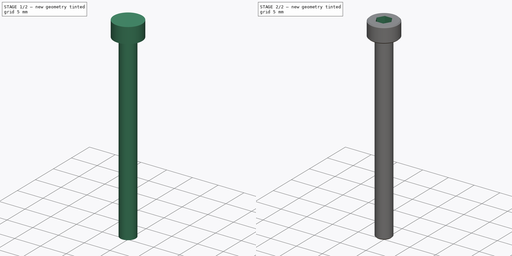
[diagram: build sequence overview — one tinted view per stage of 2, left to right]
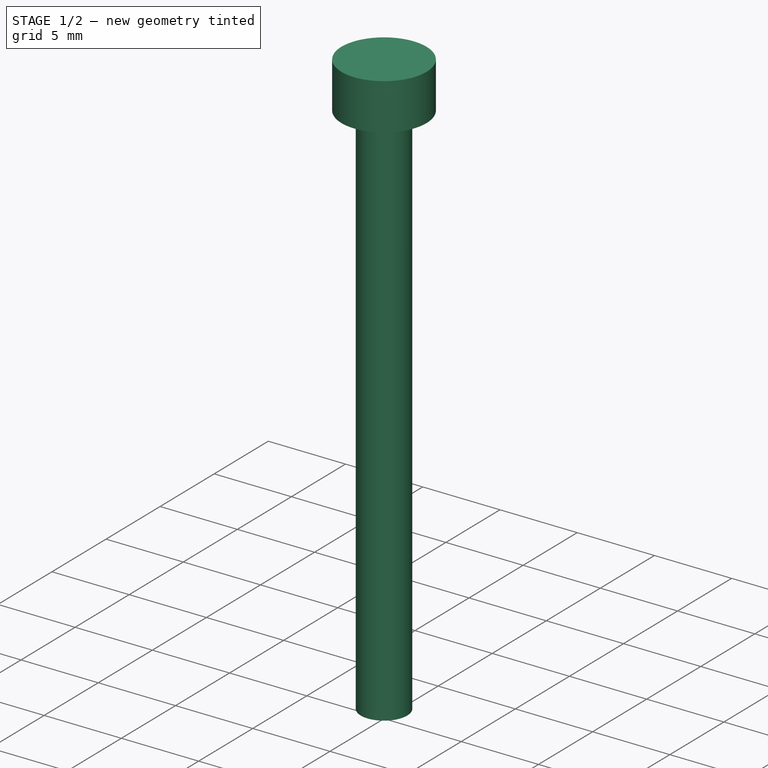
[diagram: stage 1 of 2 — iso view after this stage's code; geometry added in this stage tinted green]
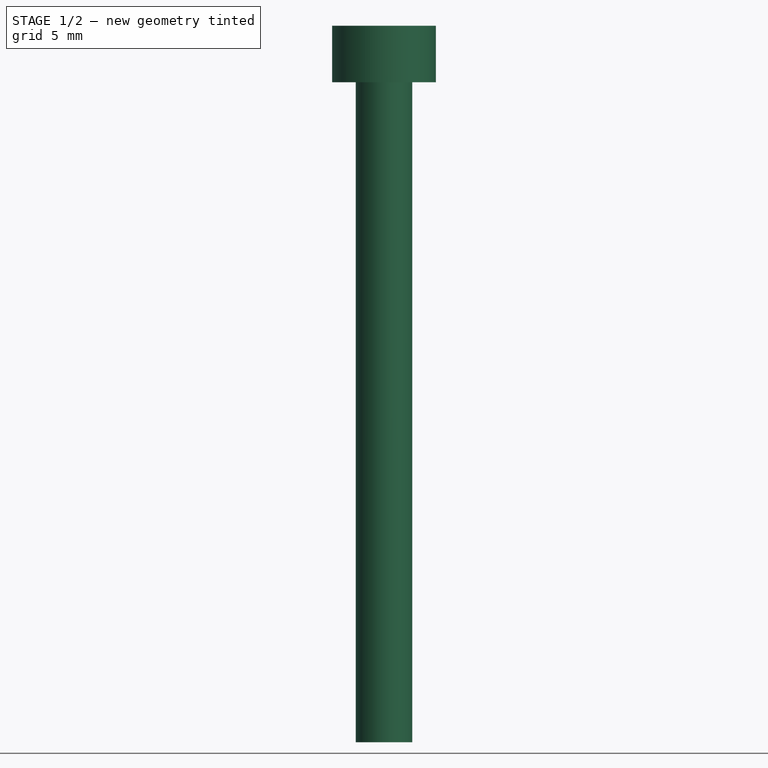
[diagram: stage 1 of 2 — front view after this stage's code; geometry added in this stage tinted green]
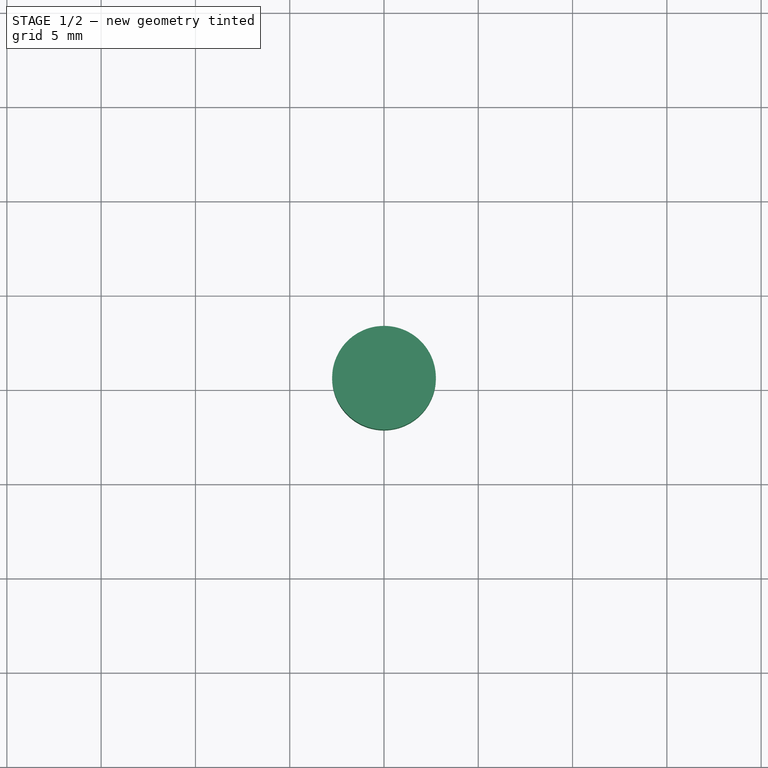
[diagram: stage 1 of 2 — top view after this stage's code; geometry added in this stage tinted green]
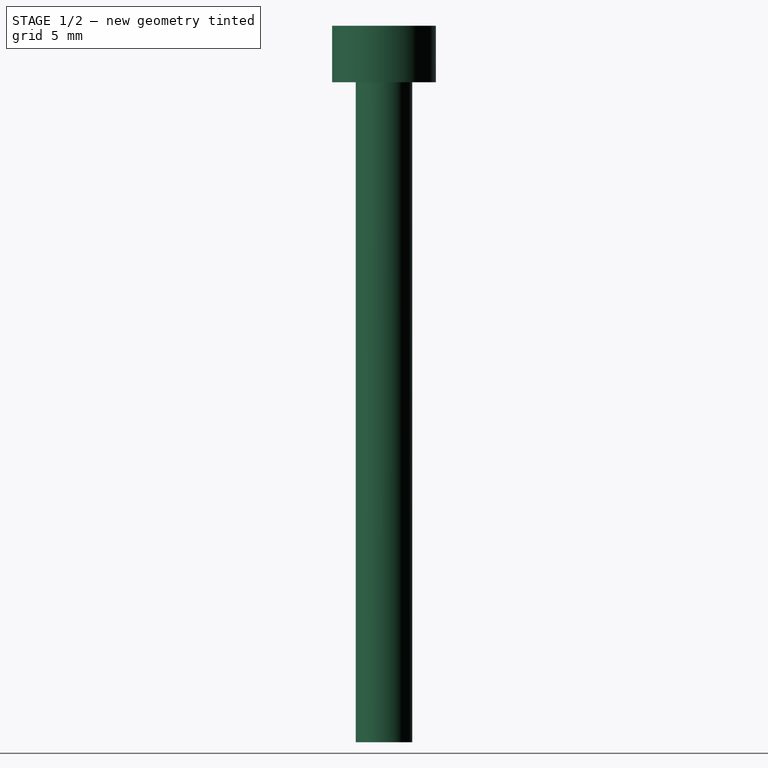
[diagram: stage 1 of 2 — right view after this stage's code; geometry added in this stage tinted green]
FCSTD DOCUMENT  (FreeCAD 0.19R24267 +148 (Git))
Label: visTHCM3x35
License: All rights reserved
LicenseURL: http://en.wikipedia.org/wiki/All_rights_reserved
objects: Sketcher::SketchObject×3, PartDesign::Pad×2, PartDesign::Plane×1, PartDesign::Pocket×1, PartDesign::Chamfer×1, PartDesign::Body×1
note: 13 computed .brp shape members not serialized (recipe doc carries the construction recipe); baked Part::Feature solids carry a one-line shape summary decoded from their .brp

FEATURE [Sketcher::SketchObject] Sketch
  FullyConstrained = false
  MapMode = 5
  Support = -> [XY_Plane]
  sketch-geometry (1):
    g0: Circle CenterX=0 CenterY=0 CenterZ=0 NormalX=0 NormalY=0 NormalZ=1 AngleXU=0 Radius=2.75
  constraints (2):
    c: Coincident(g0,g-1)
    c: Diameter(g0) = 5.5
FEATURE [PartDesign::Pad] Pad  label="tete"
  AllowMultiFace = false
  Direction = (1,1,1)
  Length = 3
  Length2 = 100
  Profile = -> Sketch
  Type = 0
FEATURE [Sketcher::SketchObject] Sketch001
  FullyConstrained = false
  MapMode = 5
  Placement = pos=(0,0,0) rot=(1,0,0;3.14159rad)
  Support = -> [Pad]
  sketch-geometry (1):
    g0: Circle CenterX=0 CenterY=0 CenterZ=0 NormalX=0 NormalY=0 NormalZ=1 AngleXU=0 Radius=1.5
  constraints (2):
    c: Coincident(g0,g-1)
    c: Diameter(g0) = 3
FEATURE [PartDesign::Pad] Pad001  label="corps"
  AllowMultiFace = false
  BaseFeature = -> Pad
  Direction = (1,1,1)
  Length = 35
  Length2 = 100
  Profile = -> Sketch001
  Type = 0
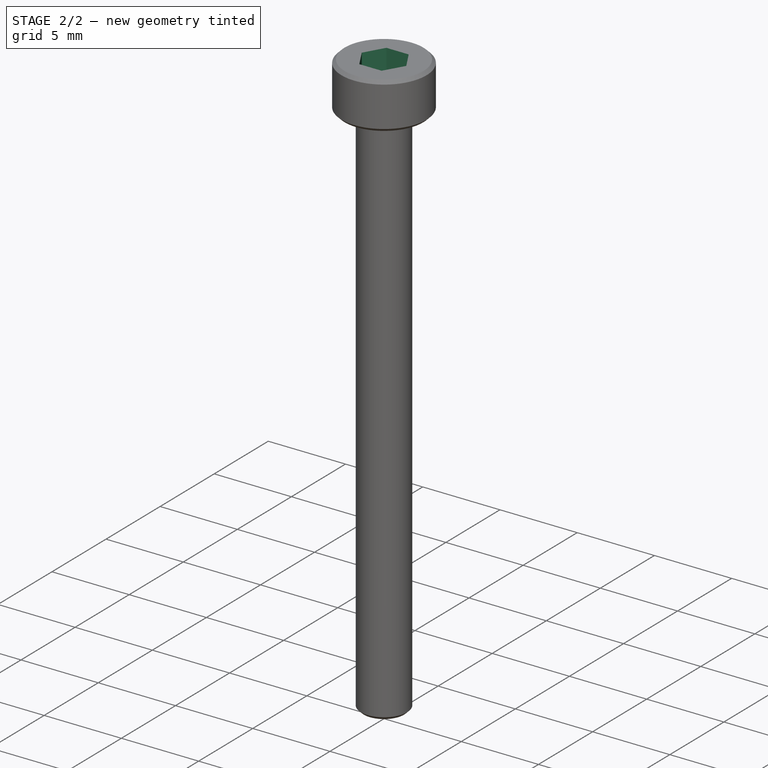
[diagram: stage 2 of 2 — iso view after this stage's code; geometry added in this stage tinted green]
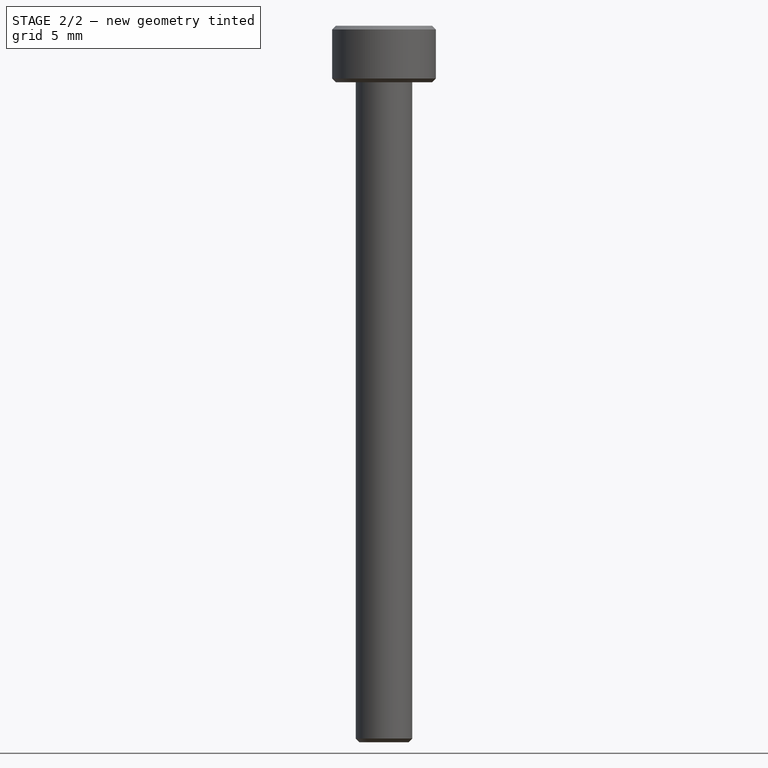
[diagram: stage 2 of 2 — front view after this stage's code; geometry added in this stage tinted green]
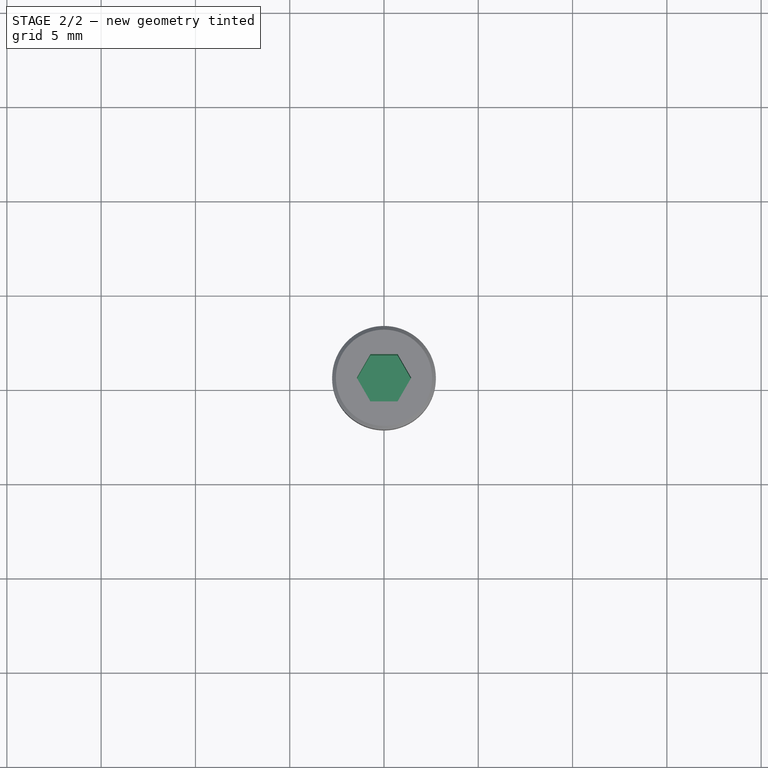
[diagram: stage 2 of 2 — top view after this stage's code; geometry added in this stage tinted green]
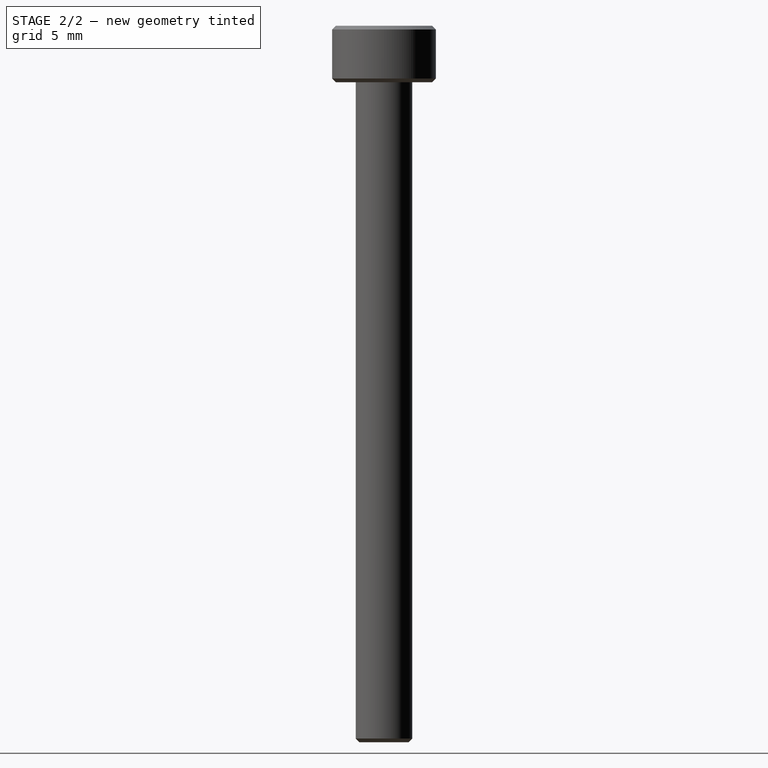
[diagram: stage 2 of 2 — right view after this stage's code; geometry added in this stage tinted green]
FEATURE [PartDesign::Plane] DatumPlane
  AttachmentOffset = pos=(0,0,3) rot=(0,0,1;0rad)
  Length = 60
  MapMode = 5
  Placement = pos=(0,0,3) rot=(0,0,1;0rad)
  ResizeMode = 0
  Support = -> [XY_Plane]
  Width = 60
FEATURE [Sketcher::SketchObject] Sketch002
  FullyConstrained = true
  MapMode = 5
  Placement = pos=(0,0,3) rot=(0,0,1;0rad)
  Support = -> [DatumPlane]
  sketch-geometry (7):
    g0: LineSegment StartX=0.721688 StartY=-1.25 StartZ=0 EndX=1.44338 EndY=1.0119e-12 EndZ=0
    g1: LineSegment StartX=1.44338 StartY=1.0119e-12 StartZ=0 EndX=0.721688 EndY=1.25 EndZ=0
    g2: LineSegment StartX=0.721688 StartY=1.25 StartZ=0 EndX=-0.721688 EndY=1.25 EndZ=0
    g3: LineSegment StartX=-0.721688 StartY=1.25 StartZ=0 EndX=-1.44338 EndY=8.689e-13 EndZ=0
    g4: LineSegment StartX=-1.44338 StartY=8.689e-13 StartZ=0 EndX=-0.721688 EndY=-1.25 EndZ=0
    g5: LineSegment StartX=-0.721688 StartY=-1.25 StartZ=0 EndX=0.721688 EndY=-1.25 EndZ=0
    g6: Circle CenterX=0 CenterY=0 CenterZ=0 NormalX=0 NormalY=0 NormalZ=1 AngleXU=0 Radius=1.44338
  constraints (16):
    c: Coincident(g0,g1)
    c: Coincident(g1,g2)
    c: Coincident(g2,g3)
    c: Coincident(g3,g4)
    c: Coincident(g4,g5)
    c: Coincident(g5,g0)
    c: Equal(g0, g1-g5) x5
    c: PointOnObject(g0,g6)
    c: PointOnObject(g1,g6)
    c: PointOnObject(g2,g6)
    c: PointOnObject(g3,g6)
    c: PointOnObject(g4,g6)
    c: PointOnObject(g5,g6)
    c: Coincident(g6,g-1)
    c: Horizontal(g2)
    c: DistanceY(g0,g1) = 2.5
FEATURE [PartDesign::Pocket] Pocket  label="emprunte"
  AllowMultiFace = false
  BaseFeature = -> Pad001
  Length = 4
  Length2 = 100
  Profile = -> Sketch002
  Type = 0
FEATURE [PartDesign::Chamfer] Chamfer
  Angle = 45
  Base = -> Pocket [Edge12,Edge2,Edge3]
  BaseFeature = -> Pocket
  ChamferType = 0
  FlipDirection = false
  Size = 0.2
  Size2 = 1
  SupportTransform = false
FEATURE [PartDesign::Body] Body  label="visTHCM3x35"
  Group = -> [Sketch,Pad,Sketch001,Pad001,DatumPlane,Sketch002,Pocket,Chamfer]
  Origin = -> Origin
  Tip = -> Chamfer
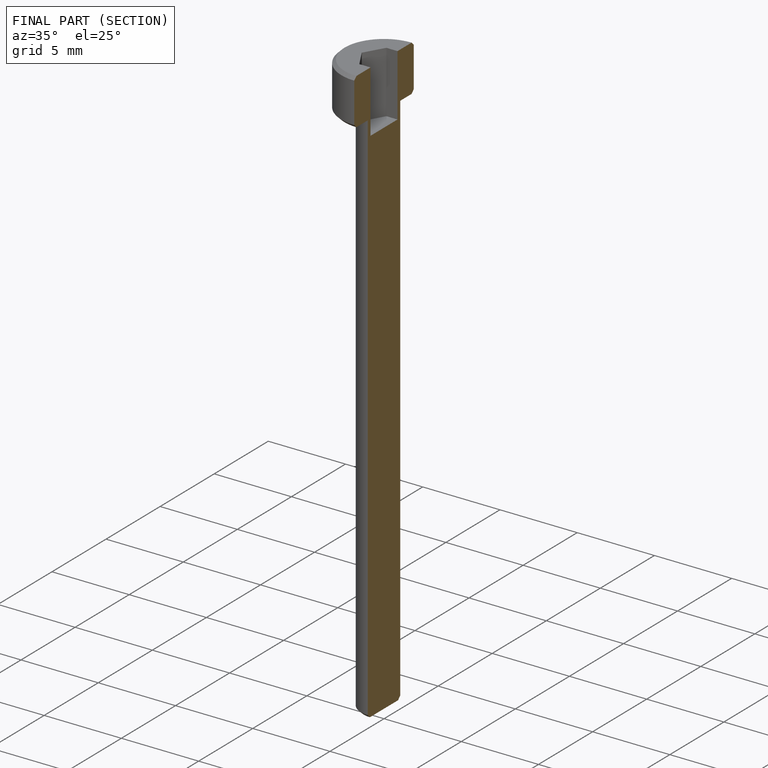
[diagram: finished part — half-section view (interior)]
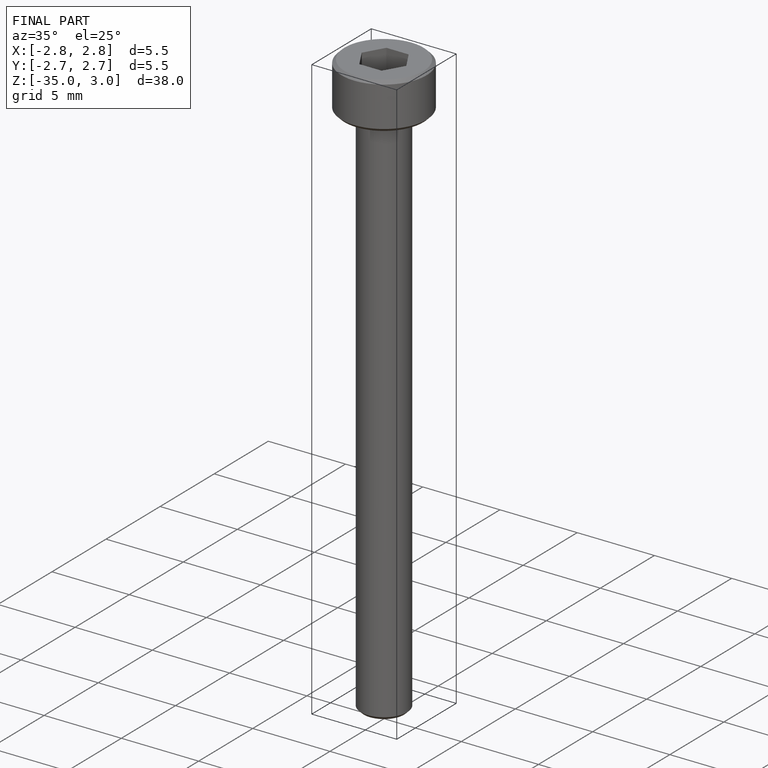
[diagram: finished part — iso view with bounding-box wireframe]
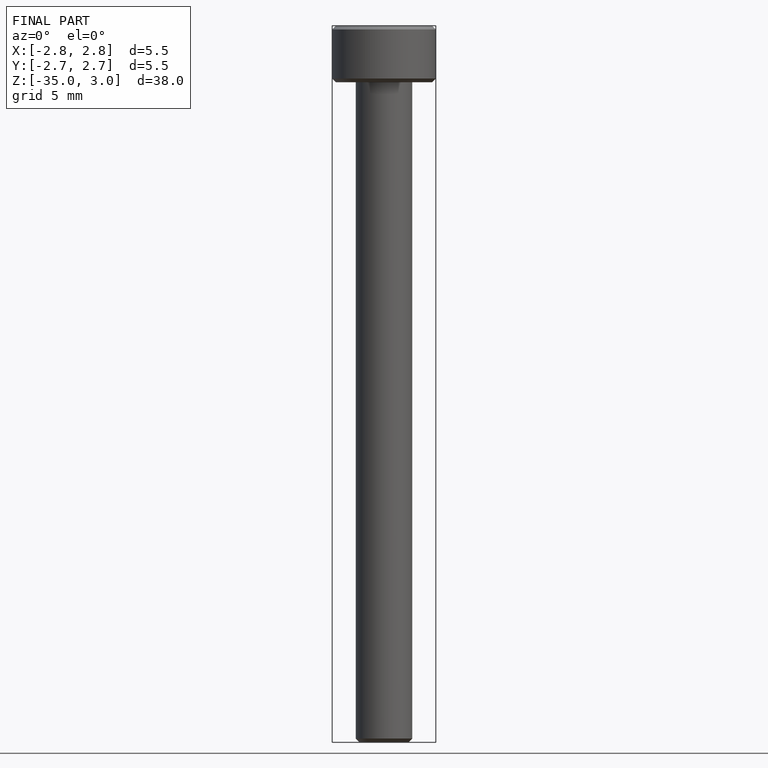
[diagram: finished part — front view with bounding-box wireframe]
